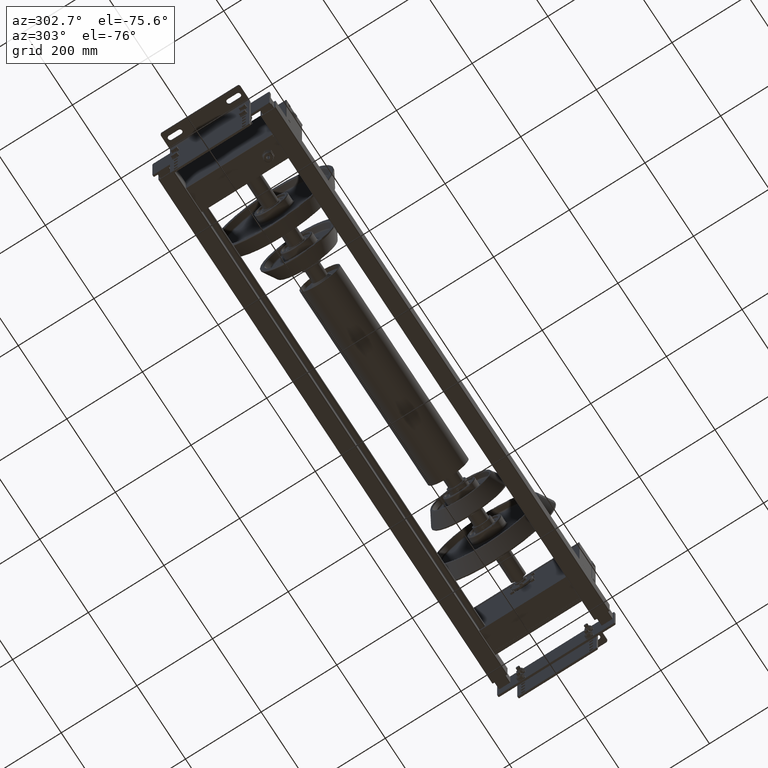
[diagram: clean part render]
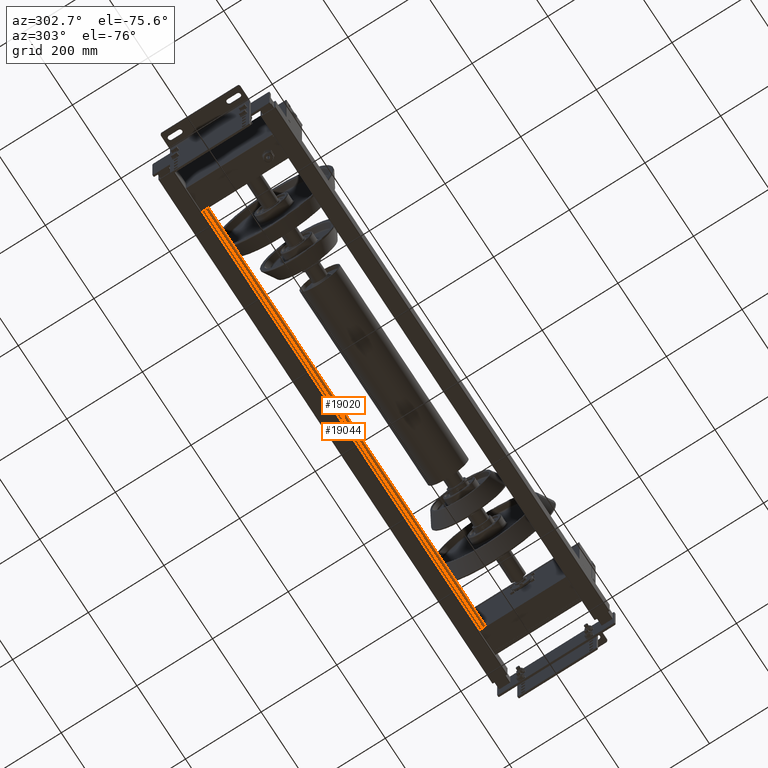
[diagram: same view with one multi-face feature highlighted, each face labeled with its STEP entity id]
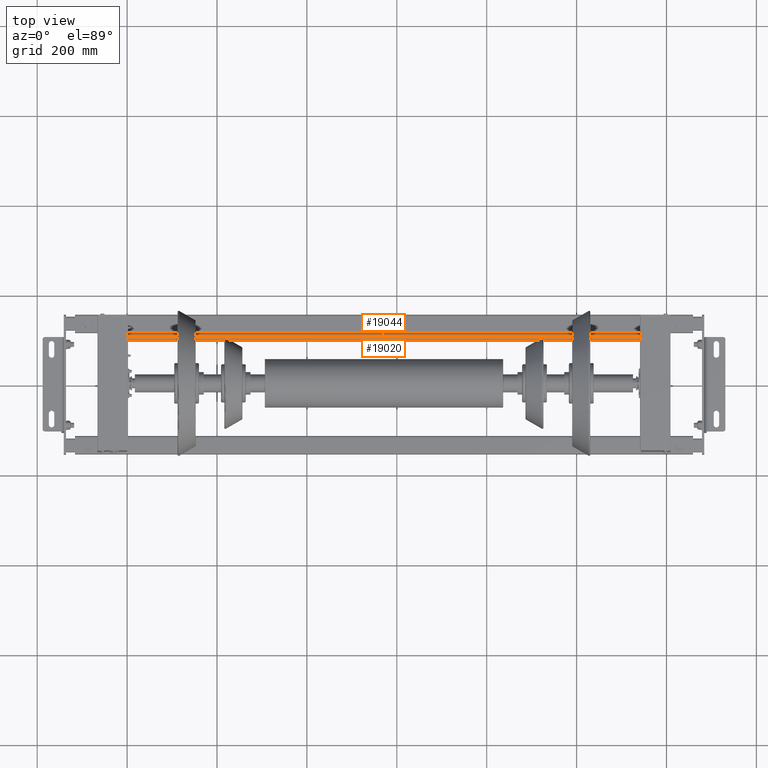
[diagram: same view with one multi-face feature highlighted, each face labeled with its STEP entity id]
A machine part, auxiliary view. The highlighted faces form ONE feature: a constant-radius fillet chain: 2 tangent blend faces with common blend radius 8 mm. The faces share edges in the B-rep.
A second angle (top view) of the same feature is appended — it is thin or edge-on in the first view.
Their STEP definitions:
[1] entity #19020 (Cylinder):
#18979=CARTESIAN_POINT('',(0.0,0.0,-325.0));
#18980=DIRECTION('',(0.0,0.0,1.0));
#18981=DIRECTION('',(1.0,0.0,0.0));
#18982=AXIS2_PLACEMENT_3D('',#18979,#18980,#18981);
#18983=CYLINDRICAL_SURFACE('',#18982,8.0);
#18984=CARTESIAN_POINT('',(8.0,0.0,824.0));
#18985=VERTEX_POINT('',#18984);
#18986=CARTESIAN_POINT('',(8.0,0.0,-325.0));
#18987=VERTEX_POINT('',#18986);
#18988=CARTESIAN_POINT('',(8.0,0.0,824.0));
#18989=DIRECTION('',(0.0,0.0,-1.0));
#18990=VECTOR('',#18989,1149.0);
#18991=LINE('',#18988,#18990);
#18992=EDGE_CURVE('',#18985,#18987,#18991,.T.);
#18993=ORIENTED_EDGE('',*,*,#18992,.F.);
#18994=CARTESIAN_POINT('',(-8.0,-9.797174E-016,824.0));
#18995=VERTEX_POINT('',#18994);
#18996=CARTESIAN_POINT('',(0.0,0.0,824.0));
#18997=DIRECTION('',(0.0,0.0,-1.0));
#18998=DIRECTION('',(1.0,0.0,0.0));
#18999=AXIS2_PLACEMENT_3D('',#18996,#18997,#18998);
#19000=CIRCLE('',#18999,8.0);
#19001=EDGE_CURVE('',#18985,#18995,#19000,.T.);
#19002=ORIENTED_EDGE('',*,*,#19001,.T.);
#19003=CARTESIAN_POINT('',(-8.0,-9.797174E-016,-325.0));
#19004=VERTEX_POINT('',#19003);
#19005=CARTESIAN_POINT('',(-8.0,-9.797174E-016,824.0));
#19006=DIRECTION('',(0.0,0.0,-1.0));
#19007=VECTOR('',#19006,1149.0);
#19008=LINE('',#19005,#19007);
#19009=EDGE_CURVE('',#18995,#19004,#19008,.T.);
#19010=ORIENTED_EDGE('',*,*,#19009,.T.);
#19011=CARTESIAN_POINT('',(0.0,0.0,-325.0));
#19012=DIRECTION('',(0.0,0.0,1.0));
#19013=DIRECTION('',(1.0,0.0,0.0));
#19014=AXIS2_PLACEMENT_3D('',#19011,#19012,#19013);
#19015=CIRCLE('',#19014,8.0);
#19016=EDGE_CURVE('',#19004,#18987,#19015,.T.);
#19017=ORIENTED_EDGE('',*,*,#19016,.T.);
#19018=EDGE_LOOP('',(#18993,#19002,#19010,#19017));
#19019=FACE_OUTER_BOUND('',#19018,.T.);
#19020=ADVANCED_FACE('',(#19019),#18983,.T.);
[2] entity #19044 (Cylinder):
#18984=CARTESIAN_POINT('',(8.0,0.0,824.0));
#18985=VERTEX_POINT('',#18984);
#18986=CARTESIAN_POINT('',(8.0,0.0,-325.0));
#18987=VERTEX_POINT('',#18986);
#18988=CARTESIAN_POINT('',(8.0,0.0,824.0));
#18989=DIRECTION('',(0.0,0.0,-1.0));
#18990=VECTOR('',#18989,1149.0);
#18991=LINE('',#18988,#18990);
#18992=EDGE_CURVE('',#18985,#18987,#18991,.T.);
#18994=CARTESIAN_POINT('',(-8.0,-9.797174E-016,824.0));
#18995=VERTEX_POINT('',#18994);
#19003=CARTESIAN_POINT('',(-8.0,-9.797174E-016,-325.0));
#19004=VERTEX_POINT('',#19003);
#19005=CARTESIAN_POINT('',(-8.0,-9.797174E-016,824.0));
#19006=DIRECTION('',(0.0,0.0,-1.0));
#19007=VECTOR('',#19006,1149.0);
#19008=LINE('',#19005,#19007);
#19009=EDGE_CURVE('',#18995,#19004,#19008,.T.);
#19021=CARTESIAN_POINT('',(0.0,0.0,-325.0));
#19022=DIRECTION('',(0.0,0.0,1.0));
#19023=DIRECTION('',(1.0,0.0,0.0));
#19024=AXIS2_PLACEMENT_3D('',#19021,#19022,#19023);
#19025=CYLINDRICAL_SURFACE('',#19024,8.0);
#19026=ORIENTED_EDGE('',*,*,#18992,.T.);
#19027=CARTESIAN_POINT('',(0.0,0.0,-325.0));
#19028=DIRECTION('',(0.0,0.0,1.0));
#19029=DIRECTION('',(1.0,0.0,0.0));
#19030=AXIS2_PLACEMENT_3D('',#19027,#19028,#19029);
#19031=CIRCLE('',#19030,8.0);
#19032=EDGE_CURVE('',#18987,#19004,#19031,.T.);
#19033=ORIENTED_EDGE('',*,*,#19032,.T.);
#19034=ORIENTED_EDGE('',*,*,#19009,.F.);
#19035=CARTESIAN_POINT('',(0.0,0.0,824.0));
#19036=DIRECTION('',(0.0,0.0,-1.0));
#19037=DIRECTION('',(1.0,0.0,0.0));
#19038=AXIS2_PLACEMENT_3D('',#19035,#19036,#19037);
#19039=CIRCLE('',#19038,8.0);
#19040=EDGE_CURVE('',#18995,#18985,#19039,.T.);
#19041=ORIENTED_EDGE('',*,*,#19040,.T.);
#19042=EDGE_LOOP('',(#19026,#19033,#19034,#19041));
#19043=FACE_OUTER_BOUND('',#19042,.T.);
#19044=ADVANCED_FACE('',(#19043),#19025,.T.);